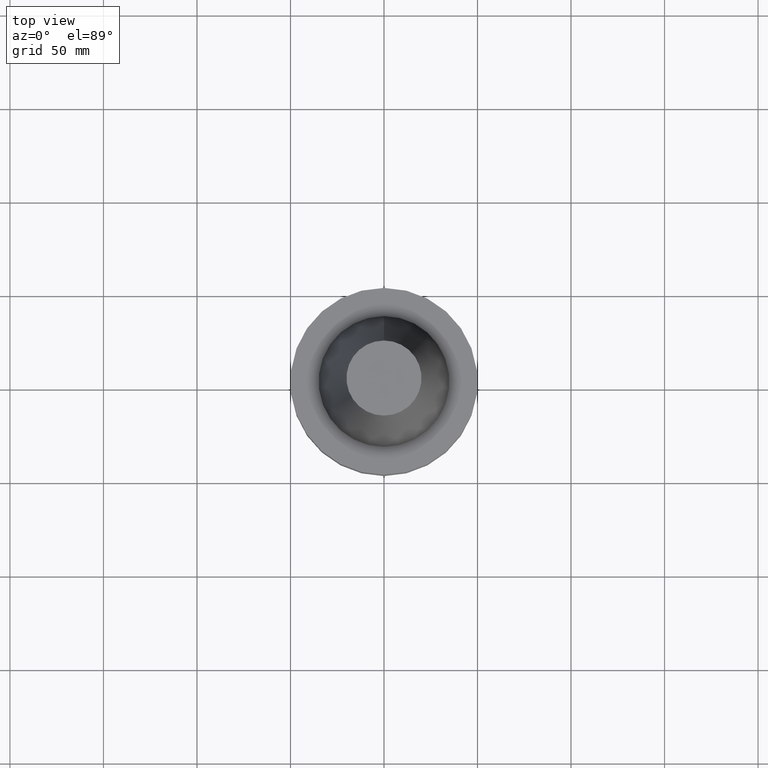
[diagram: clean part render]
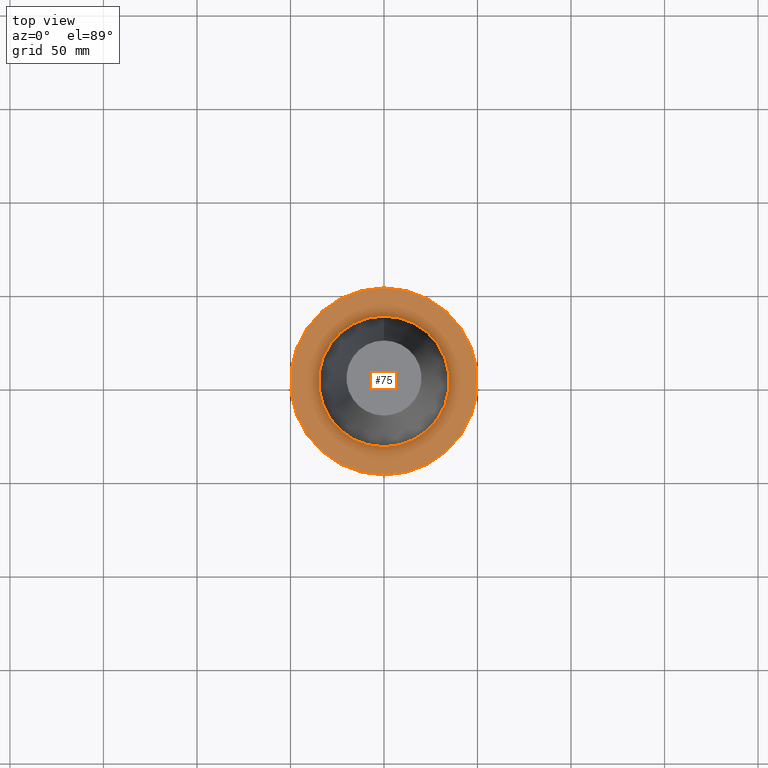
[diagram: same view with one face highlighted and labeled with its STEP entity id]
A machine part, top view. The second image highlights one B-rep face of the part: STEP entity #75.
In plain terms, the highlighted planar face has unit normal (-0, -0, 1).
Its self-contained STEP definition (entity closure, byte-faithful):
#75=ADVANCED_FACE('',(#89,#90),#91,.T.);
#89=FACE_OUTER_BOUND('',#126,.T.);
#90=FACE_BOUND('',#127,.T.);
#91=PLANE('',#128);
#126=EDGE_LOOP('',(#163));
#127=EDGE_LOOP('',(#164));
#128=AXIS2_PLACEMENT_3D('',#165,#166,#167);
#163=ORIENTED_EDGE('',*,*,#226,.F.);
#164=ORIENTED_EDGE('',*,*,#227,.T.);
#165=CARTESIAN_POINT('',(9.1848509936051E-017,42.4625,-1.5));
#166=DIRECTION('',(-6.12323399573677E-017,-4.63006370244663E-018,1.0));
#167=DIRECTION('',(5.1106623654215E-033,-1.0,-4.63006370244663E-018));
#226=EDGE_CURVE('',#238,#238,#239,.T.);
#227=EDGE_CURVE('',#240,#240,#241,.T.);
#238=VERTEX_POINT('',#262);
#239=CIRCLE('',#263,50.0);
#240=VERTEX_POINT('',#264);
#241=CIRCLE('',#265,34.925);
#262=CARTESIAN_POINT('',(9.1848509936051E-017,50.0,-1.5));
#263=AXIS2_PLACEMENT_3D('',#286,#287,#288);
#264=CARTESIAN_POINT('',(9.18485099360511E-017,34.925,-1.5));
#265=AXIS2_PLACEMENT_3D('',#289,#290,#291);
#286=CARTESIAN_POINT('',(9.18485099360516E-017,1.83697019872103E-016,-1.5));
#287=DIRECTION('',(6.12323399573677E-017,1.22464679914735E-016,-1.0));
#288=DIRECTION('',(-1.23259516440783E-032,1.0,1.22464679914735E-016));
#289=CARTESIAN_POINT('',(9.18485099360515E-017,1.83697019872103E-016,-1.5));
#290=DIRECTION('',(6.12323399573677E-017,1.22464679914735E-016,-1.0));
#291=DIRECTION('',(-1.23259516440783E-032,1.0,1.22464679914735E-016));